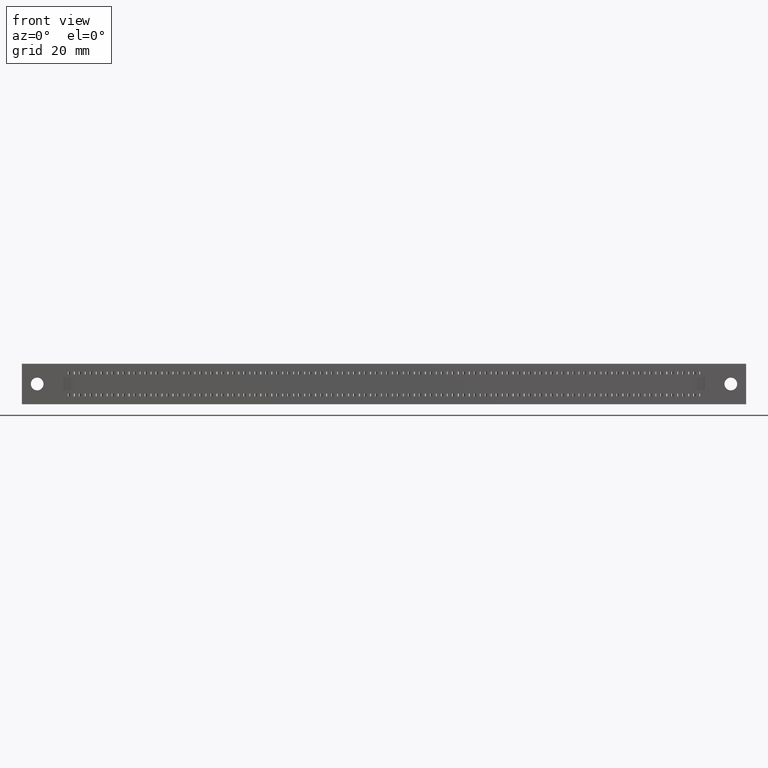
[diagram: clean part render]
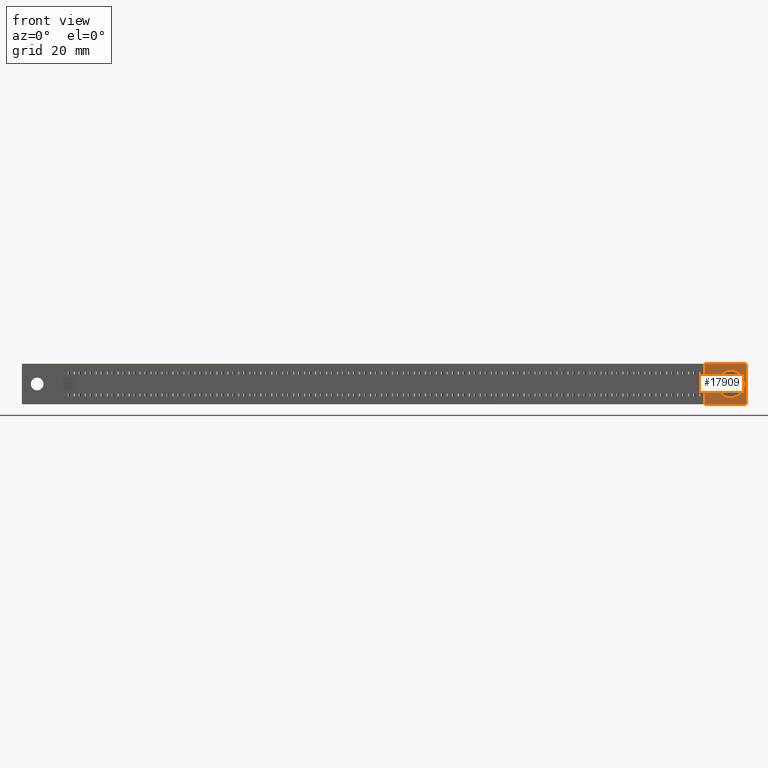
[diagram: same view with one face highlighted and labeled with its STEP entity id]
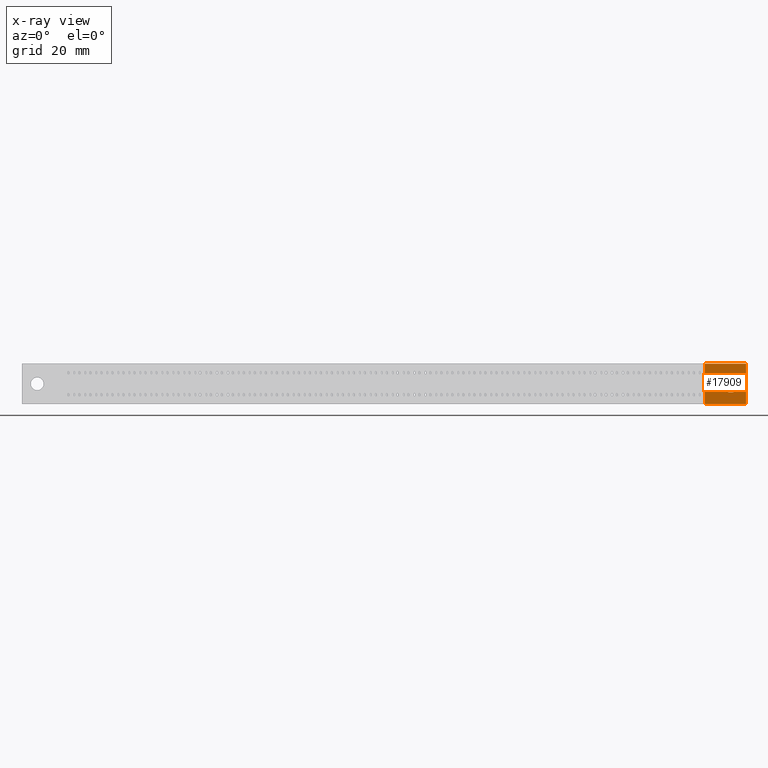
[diagram: x-ray of the same camera — body ghosted, the highlighted face saturated]
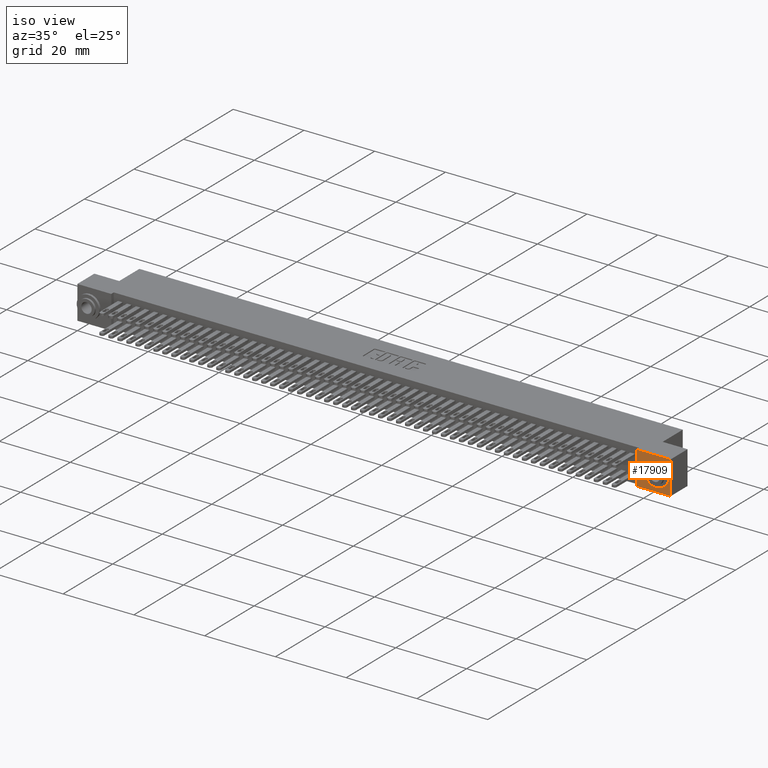
[diagram: same view with one face highlighted and labeled with its STEP entity id]
A machine part, front view. The second image highlights one B-rep face of the part: STEP entity #17909.
The next image is the same camera in x-ray: the body ghosted, the highlighted face saturated — about 0% of this face is hidden behind the body in this view.
A second angle (iso view) of the same face is appended — the face is thin or edge-on in the first view.
In plain terms, the highlighted planar face has unit normal (0, -1, 0).
Its self-contained STEP definition (entity closure, byte-faithful):
#1437 = LINE ( 'NONE', #27982, #22581 ) ;
#2699 = DIRECTION ( 'NONE',  ( 0.0000000000000000000, 0.0000000000000000000, 1.000000000000000000 ) ) ;
#3748 = DIRECTION ( 'NONE',  ( -1.000000000000000000, -0.0000000000000000000, -0.0000000000000000000 ) ) ;
#3788 = CARTESIAN_POINT ( 'NONE',  ( 0.0000000000000000000, 0.0000000000000000000, 0.0000000000000000000 ) ) ;
#3860 = DIRECTION ( 'NONE',  ( 0.0000000000000000000, 1.000000000000000000, -0.0000000000000000000 ) ) ;
#4057 = CARTESIAN_POINT ( 'NONE',  ( 6.461000000000003000, 0.0000000000000000000, -0.1070000000000007600 ) ) ;
#4399 = VECTOR ( 'NONE', #3748, 39.37007874015748100 ) ;
#4634 = ORIENTED_EDGE ( 'NONE', *, *, #8270, .T. ) ;
#7319 = LINE ( 'NONE', #10958, #12920 ) ;
#8270 = EDGE_CURVE ( 'NONE', #35571, #30840, #25170, .T. ) ;
#8313 = EDGE_CURVE ( 'NONE', #10873, #8727, #1437, .T. ) ;
#8727 = VERTEX_POINT ( 'NONE', #11177 ) ;
#9885 = AXIS2_PLACEMENT_3D ( 'NONE', #30058, #16285, #35628 ) ;
#10054 = CARTESIAN_POINT ( 'NONE',  ( 6.600000000000001400, 0.0000000000000000000, 0.0000000000000000000 ) ) ;
#10708 = PLANE ( 'NONE',  #9885 ) ;
#10873 = VERTEX_POINT ( 'NONE', #10054 ) ;
#10958 = CARTESIAN_POINT ( 'NONE',  ( 6.223000000000003400, 0.0000000000000000000, -0.3699999999999999400 ) ) ;
#11177 = CARTESIAN_POINT ( 'NONE',  ( 6.600000000000001400, 0.0000000000000000000, -0.3700000000000000000 ) ) ;
#11958 = EDGE_CURVE ( 'NONE', #8727, #12897, #20821, .T. ) ;
#12897 = VERTEX_POINT ( 'NONE', #17902 ) ;
#12920 = VECTOR ( 'NONE', #2699, 39.37007874015748100 ) ;
#16285 = DIRECTION ( 'NONE',  ( 0.0000000000000000000, -1.000000000000000000, 0.0000000000000000000 ) ) ;
#16995 = EDGE_LOOP ( 'NONE', ( #30585, #22970, #30321, #35092 ) ) ;
#17508 = CARTESIAN_POINT ( 'NONE',  ( 0.0000000000000000000, 0.0000000000000000000, -0.3700000000000000000 ) ) ;
#17902 = CARTESIAN_POINT ( 'NONE',  ( 6.223000000000003400, 0.0000000000000000000, -0.3699999999999999400 ) ) ;
#17909 = ADVANCED_FACE ( 'NONE', ( #25596, #18250 ), #10708, .T. ) ;
#18023 = LINE ( 'NONE', #3788, #24476 ) ;
#18250 = FACE_OUTER_BOUND ( 'NONE', #16995, .T. ) ;
#20018 = EDGE_CURVE ( 'NONE', #12897, #35708, #7319, .T. ) ;
#20373 = CARTESIAN_POINT ( 'NONE',  ( 6.461000000000003000, 0.0000000000000000000, -0.1850000000000008000 ) ) ;
#20821 = LINE ( 'NONE', #17508, #4399 ) ;
#21690 = EDGE_CURVE ( 'NONE', #35708, #10873, #18023, .T. ) ;
#22581 = VECTOR ( 'NONE', #27800, 39.37007874015748100 ) ;
#22970 = ORIENTED_EDGE ( 'NONE', *, *, #11958, .F. ) ;
#23150 = DIRECTION ( 'NONE',  ( 0.0000000000000000000, 0.0000000000000000000, -1.000000000000000000 ) ) ;
#24233 = EDGE_LOOP ( 'NONE', ( #27008, #4634 ) ) ;
#24476 = VECTOR ( 'NONE', #25896, 39.37007874015748100 ) ;
#24501 = CARTESIAN_POINT ( 'NONE',  ( 6.461000000000003000, 0.0000000000000000000, -0.2630000000000008400 ) ) ;
#25170 = CIRCLE ( 'NONE', #35219, 0.07800000000000002800 ) ;
#25596 = FACE_BOUND ( 'NONE', #24233, .T. ) ;
#25846 = AXIS2_PLACEMENT_3D ( 'NONE', #20373, #3860, #23150 ) ;
#25891 = CIRCLE ( 'NONE', #25846, 0.07800000000000002800 ) ;
#25896 = DIRECTION ( 'NONE',  ( 1.000000000000000000, 0.0000000000000000000, 0.0000000000000000000 ) ) ;
#27008 = ORIENTED_EDGE ( 'NONE', *, *, #28076, .T. ) ;
#27800 = DIRECTION ( 'NONE',  ( 0.0000000000000000000, 0.0000000000000000000, -1.000000000000000000 ) ) ;
#27982 = CARTESIAN_POINT ( 'NONE',  ( 6.600000000000001400, 0.0000000000000000000, 0.0000000000000000000 ) ) ;
#28076 = EDGE_CURVE ( 'NONE', #30840, #35571, #25891, .T. ) ;
#29064 = DIRECTION ( 'NONE',  ( 0.0000000000000000000, 0.0000000000000000000, -1.000000000000000000 ) ) ;
#29108 = DIRECTION ( 'NONE',  ( 0.0000000000000000000, 1.000000000000000000, -0.0000000000000000000 ) ) ;
#29116 = CARTESIAN_POINT ( 'NONE',  ( 6.461000000000003000, 0.0000000000000000000, -0.1850000000000008000 ) ) ;
#30058 = CARTESIAN_POINT ( 'NONE',  ( 0.0000000000000000000, 0.0000000000000000000, -0.3700000000000000000 ) ) ;
#30321 = ORIENTED_EDGE ( 'NONE', *, *, #8313, .F. ) ;
#30585 = ORIENTED_EDGE ( 'NONE', *, *, #20018, .F. ) ;
#30670 = CARTESIAN_POINT ( 'NONE',  ( 6.223000000000003400, 0.0000000000000000000, -1.895600338963814900E-033 ) ) ;
#30840 = VERTEX_POINT ( 'NONE', #4057 ) ;
#35092 = ORIENTED_EDGE ( 'NONE', *, *, #21690, .F. ) ;
#35219 = AXIS2_PLACEMENT_3D ( 'NONE', #29116, #29108, #29064 ) ;
#35571 = VERTEX_POINT ( 'NONE', #24501 ) ;
#35628 = DIRECTION ( 'NONE',  ( 0.0000000000000000000, -0.0000000000000000000, -1.000000000000000000 ) ) ;
#35708 = VERTEX_POINT ( 'NONE', #30670 ) ;